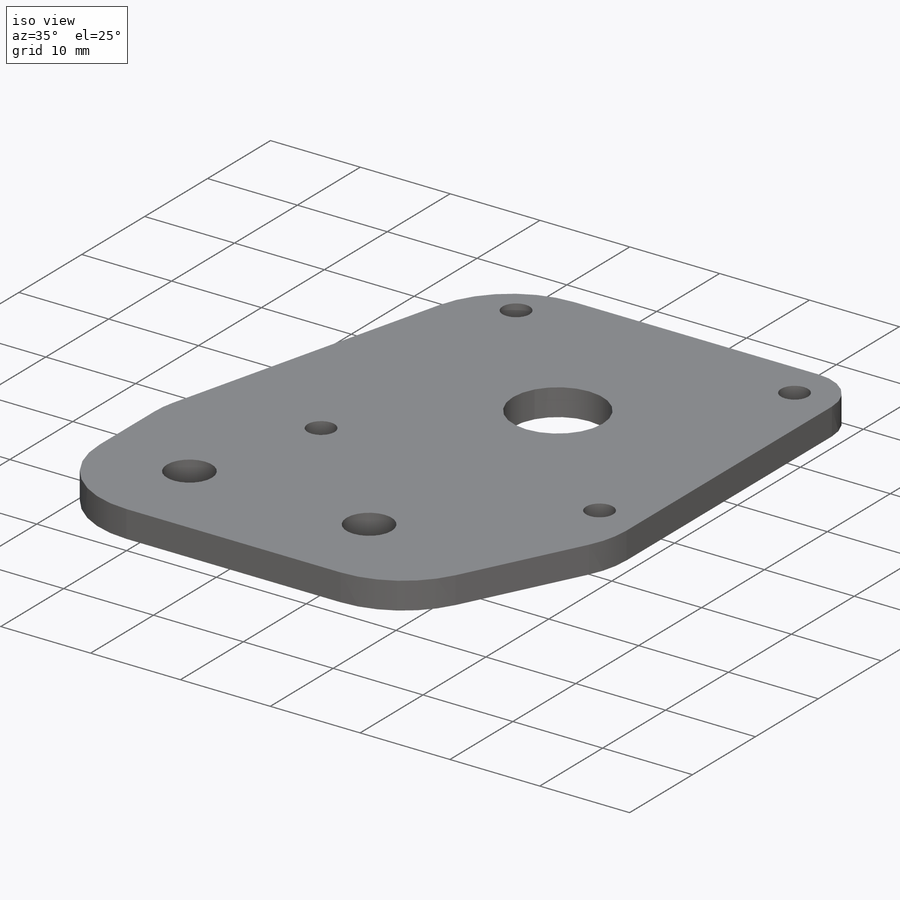
[diagram: iso view]
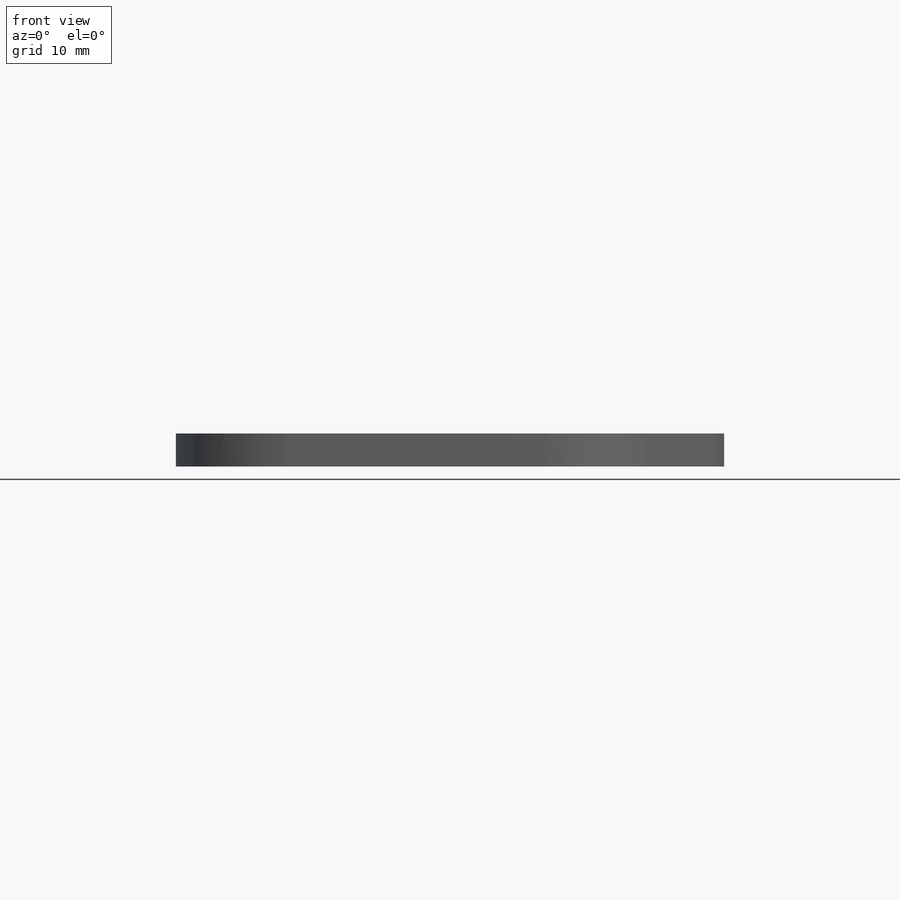
[diagram: front view]
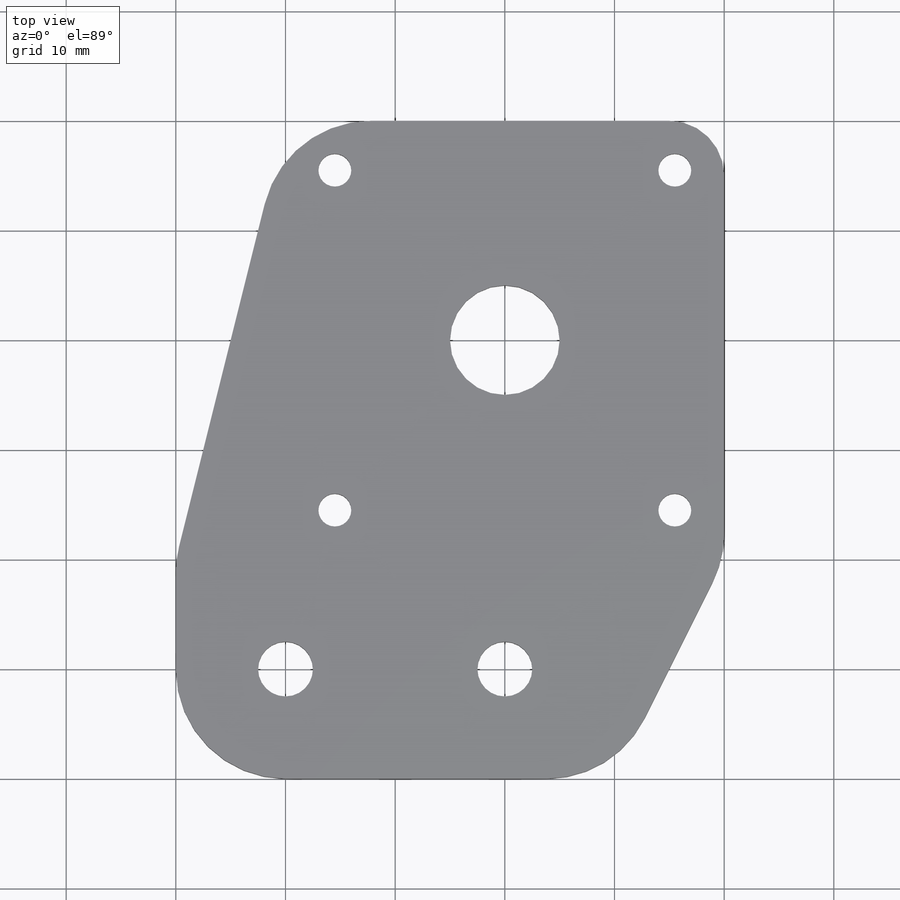
[diagram: top view]
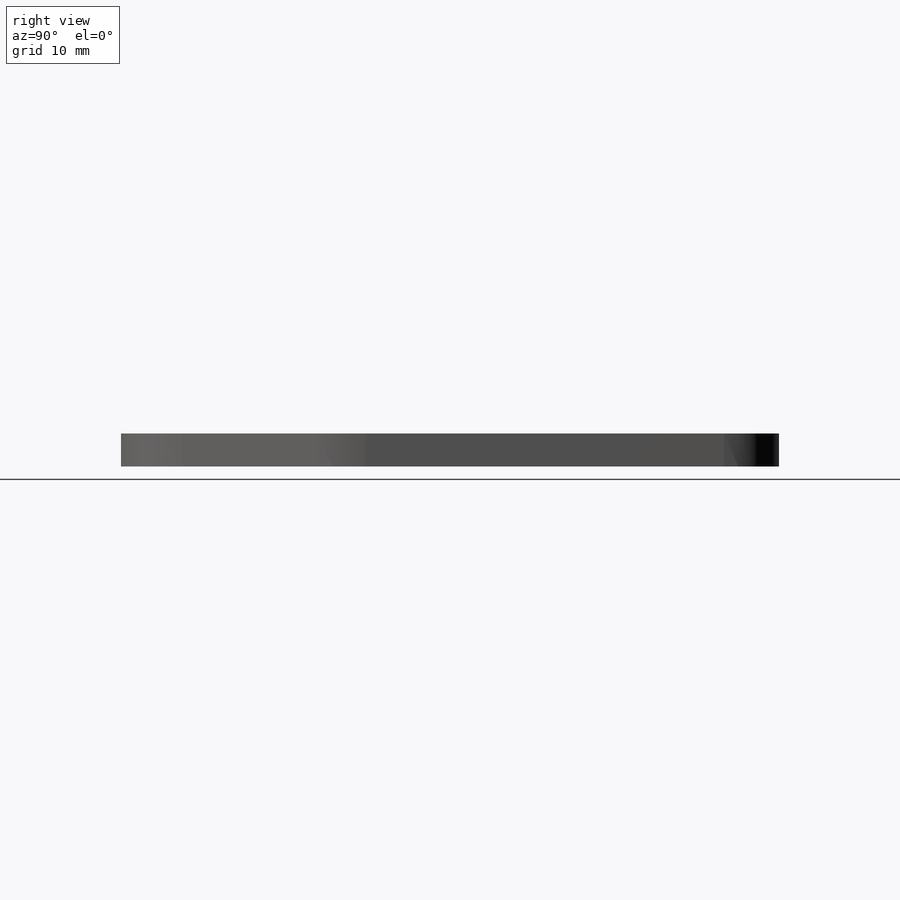
[diagram: right view]
SOLIDWORKS PART (.sldprt)
format: sldprt  version: not decoded by parser v0  size: 383,488 bytes
history: native  units: mm
features: sketch x3, cut_extrude x2, pattern_linear x2, fillet x2, material x1, extrude x1 (+13 scaffold rows collapsed)
feature tree (24):
  scaffold x13  (default folders/planes/origin — collapsed)
  material  "Material <not specified>"
  sketch  "Sketch1"  dims[c1.D1=10.0mm c1.D4=25.0mm c1.D2=60.0mm c1.D3=55.0mm c2.D4=20.0mm c2.D5=30.0mm c2.D2=50.0mm c2.D3=60.0mm c2.D6=40.0mm c2.D7=40.0mm c2.D8=40.0mm c2.D9=20.0mm]
  extrude  "Boss-Extrude1"  Depth=3mm
  sketch  "Sketch2"  dims[c1.D1=3.0mm c1.D2=3.0mm c1.D3=3.0mm c2.D2=15.5mm c2.D3=15.5mm]
  cut_extrude  "Cut-Extrude1"  [1 undecoded]
  pattern_linear  "LPattern1"  Count1=2 Count2=2 Spacing1=31mm Spacing2=31mm
  sketch  "Sketch3"  dims[c1.D1=5.0mm c1.D2=5.0mm c1.D3=5.0mm c1.D4=5.0mm c2.D2=20.0mm c2.D3=10.0mm c2.D4=10.0mm]
  cut_extrude  "Cut-Extrude2"  [1 undecoded]
  pattern_linear  "LPattern2"  Count1=2 Count2=1 Spacing1=20mm Spacing2=28.5mm
  fillet  "Fillet1"  Radius=10mm
  fillet  "Fillet2"  Radius=5mm
decode coverage: 8 of 10 modeling features carry decoded parameters
note: 2 parameter values undecoded
note: suppression state not decoded; provenance and decode notes live in map.json
